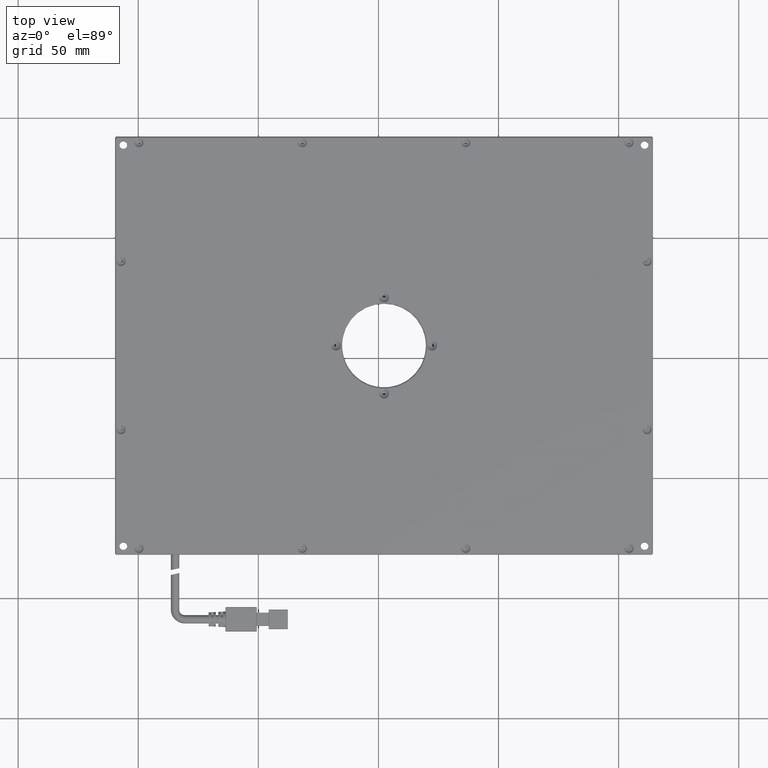
[diagram: clean part render]
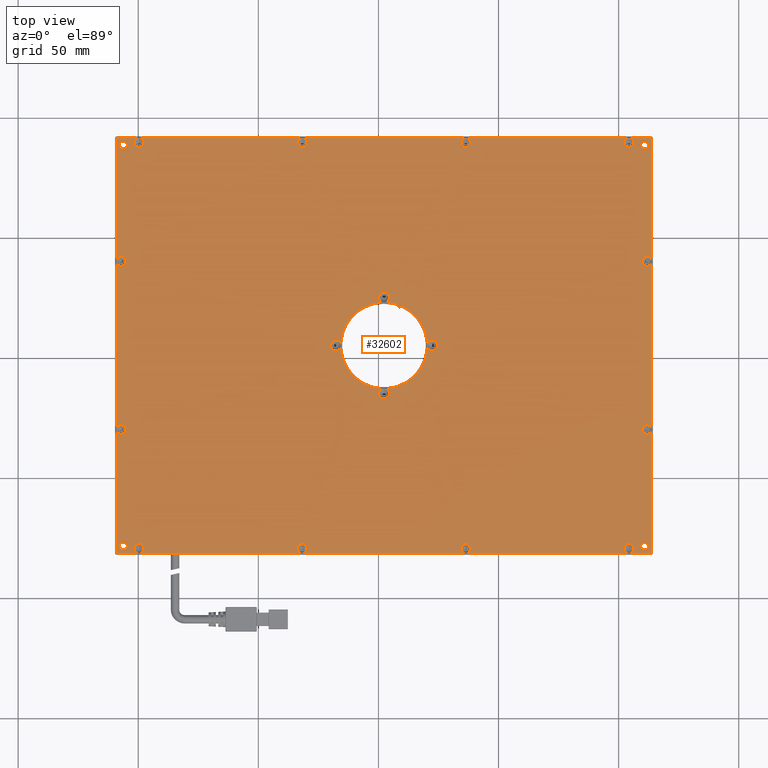
[diagram: same view with one face highlighted and labeled with its STEP entity id]
A machine part, top view. The second image highlights one B-rep face of the part: STEP entity #32602.
In plain terms, the highlighted planar face has unit normal (0, 0, -1).
Its self-contained STEP definition (entity closure, byte-faithful):
#11 = EDGE_CURVE ( 'NONE', #26374, #24419, #13463, .T. ) ;
#31 = DIRECTION ( 'NONE',  ( -1.040834085606428300E-014, -1.000000000000000000, 0.0000000000000000000 ) ) ;
#104 = AXIS2_PLACEMENT_3D ( 'NONE', #41698, #2816, #3308 ) ;
#369 = DIRECTION ( 'NONE',  ( -0.0000000000000000000, 0.0000000000000000000, -1.000000000000000000 ) ) ;
#406 = CARTESIAN_POINT ( 'NONE',  ( 3.192203652251565300, -12.78646835441682100, 5.249999999971678700 ) ) ;
#501 = EDGE_CURVE ( 'NONE', #10612, #35659, #8555, .T. ) ;
#531 = AXIS2_PLACEMENT_3D ( 'NONE', #32218, #47356, #12521 ) ;
#559 = DIRECTION ( 'NONE',  ( 1.000000000000000000, 0.0000000000000000000, 0.0000000000000000000 ) ) ;
#560 = CIRCLE ( 'NONE', #15347, 17.99999999999993200 ) ;
#632 = CIRCLE ( 'NONE', #16906, 1.999999999977297700 ) ;
#669 = DIRECTION ( 'NONE',  ( -1.000000000000000000, 0.0000000000000000000, -0.0000000000000000000 ) ) ;
#1033 = DIRECTION ( 'NONE',  ( 1.000000000000000000, 0.0000000000000000000, 0.0000000000000000000 ) ) ;
#1160 = CIRCLE ( 'NONE', #5350, 2.200000000016189000 ) ;
#1227 = ORIENTED_EDGE ( 'NONE', *, *, #40247, .F. ) ;
#1331 = DIRECTION ( 'NONE',  ( 0.0000000000000000000, -0.0000000000000000000, 1.000000000000000000 ) ) ;
#1404 = CARTESIAN_POINT ( 'NONE',  ( 2.322974683544323700, 91.69253164556960200, 5.249999999999999100 ) ) ;
#1477 = DIRECTION ( 'NONE',  ( 1.000000000000000000, 0.0000000000000000000, 0.0000000000000000000 ) ) ;
#1583 = DIRECTION ( 'NONE',  ( -0.0000000000000000000, 0.0000000000000000000, -1.000000000000000000 ) ) ;
#1650 = PLANE ( 'NONE',  #8364 ) ;
#1750 = CARTESIAN_POINT ( 'NONE',  ( 4.522974683560512700, -14.80746835443041600, 5.249999999964529700 ) ) ;
#1901 = ORIENTED_EDGE ( 'NONE', *, *, #11973, .T. ) ;
#1933 = VERTEX_POINT ( 'NONE', #3064 ) ;
#1950 = CARTESIAN_POINT ( 'NONE',  ( 36.32297468354430900, -79.30746835443038400, 5.250000000021373100 ) ) ;
#2087 = CIRCLE ( 'NONE', #47660, 2.199999999997984900 ) ;
#2132 = CARTESIAN_POINT ( 'NONE',  ( 112.4229746835443100, 88.69253164556958800, 5.249999999999999100 ) ) ;
#2181 = CARTESIAN_POINT ( 'NONE',  ( 20.30197468356493600, 6.061760614246995100, 5.250000000058496300 ) ) ;
#2191 = VERTEX_POINT ( 'NONE', #20215 ) ;
#2225 = AXIS2_PLACEMENT_3D ( 'NONE', #12942, #5660, #9091 ) ;
#2343 = DIRECTION ( 'NONE',  ( 1.000000000000000000, 0.0000000000000000000, 0.0000000000000000000 ) ) ;
#2354 = EDGE_LOOP ( 'NONE', ( #45294, #47401 ) ) ;
#2365 = DIRECTION ( 'NONE',  ( 0.0000000000000000000, -1.000000000000000000, 0.0000000000000000000 ) ) ;
#2395 = DIRECTION ( 'NONE',  ( -0.0000000000000000000, 0.0000000000000000000, -1.000000000000000000 ) ) ;
#2582 = DIRECTION ( 'NONE',  ( 0.0000000000000000000, -0.0000000000000000000, 1.000000000000000000 ) ) ;
#2816 = DIRECTION ( 'NONE',  ( 0.0000000000000000000, 0.0000000000000000000, -1.000000000000000000 ) ) ;
#2962 = CARTESIAN_POINT ( 'NONE',  ( -99.67702531645579700, 91.69253164555823300, 5.250000000010686600 ) ) ;
#3064 = CARTESIAN_POINT ( 'NONE',  ( -31.67702531645572600, 91.69253164555006200, 5.250000000010686600 ) ) ;
#3201 = CARTESIAN_POINT ( 'NONE',  ( 110.8229746835443000, 88.69253164556958800, 5.249999999999999100 ) ) ;
#3215 = CARTESIAN_POINT ( 'NONE',  ( 4.522974683560512700, 25.19253164556961300, 5.249999999964529700 ) ) ;
#3302 = EDGE_LOOP ( 'NONE', ( #22130, #49959, #7232, #43466, #26009, #3424, #33264, #1901, #19065, #22626, #37063, #10018, #10730, #29569, #38683, #19631, #13701, #19624, #43951, #24274, #30026, #12705, #9176, #16782, #37805, #44544, #41928, #19157, #22575, #48512, #27051, #35864, #1227, #29871, #38299, #28676, #25961, #9014, #11028, #39763, #5995 ) ) ;
#3308 = DIRECTION ( 'NONE',  ( 1.000000000000000000, 0.0000000000000000000, 0.0000000000000000000 ) ) ;
#3312 = CIRCLE ( 'NONE', #17406, 1.999999999960908200 ) ;
#3371 = CIRCLE ( 'NONE', #2225, 1.999999999960921900 ) ;
#3424 = ORIENTED_EDGE ( 'NONE', *, *, #33459, .T. ) ;
#3625 = CARTESIAN_POINT ( 'NONE',  ( -17.67702531645569100, 7.392531645547078000, 5.250000000021373100 ) ) ;
#3952 = VERTEX_POINT ( 'NONE', #18542 ) ;
#4017 = DIRECTION ( 'NONE',  ( 0.0000000000000000000, -1.000000000000000000, 0.0000000000000000000 ) ) ;
#4327 = DIRECTION ( 'NONE',  ( 1.000000000000000000, 0.0000000000000000000, 0.0000000000000000000 ) ) ;
#4397 = DIRECTION ( 'NONE',  ( -0.0000000000000000000, -5.421010862533481000E-017, -1.000000000000000000 ) ) ;
#4546 = DIRECTION ( 'NONE',  ( -0.0000000000000000000, -5.421010862577830400E-017, -1.000000000000000000 ) ) ;
#4572 = CARTESIAN_POINT ( 'NONE',  ( 3.192203652251652800, 23.17153164555605100, 5.249999999971687500 ) ) ;
#4610 = CIRCLE ( 'NONE', #36988, 1.600000000000004100 ) ;
#4726 = AXIS2_PLACEMENT_3D ( 'NONE', #32794, #20661, #20491 ) ;
#4878 = ORIENTED_EDGE ( 'NONE', *, *, #44305, .F. ) ;
#4969 = DIRECTION ( 'NONE',  ( 0.0000000000000000000, -0.0000000000000000000, 1.000000000000000000 ) ) ;
#4981 = VERTEX_POINT ( 'NONE', #14379 ) ;
#5234 = EDGE_CURVE ( 'NONE', #47872, #20428, #47271, .T. ) ;
#5350 = AXIS2_PLACEMENT_3D ( 'NONE', #16248, #4969, #16421 ) ;
#5660 = DIRECTION ( 'NONE',  ( -0.0000000000000000000, -5.421010862533444000E-017, -1.000000000000000000 ) ) ;
#5669 = EDGE_CURVE ( 'NONE', #11614, #40309, #6794, .T. ) ;
#5686 = EDGE_CURVE ( 'NONE', #18883, #9962, #14623, .T. ) ;
#5706 = VECTOR ( 'NONE', #10868, 1000.000000000000000 ) ;
#5708 = DIRECTION ( 'NONE',  ( 0.0000000000000000000, -0.0000000000000000000, 1.000000000000000000 ) ) ;
#5953 = VECTOR ( 'NONE', #21109, 1000.000000000000000 ) ;
#5995 = ORIENTED_EDGE ( 'NONE', *, *, #14123, .F. ) ;
#6019 = VERTEX_POINT ( 'NONE', #40062 ) ;
#6026 = AXIS2_PLACEMENT_3D ( 'NONE', #38517, #27367, #4327 ) ;
#6245 = EDGE_CURVE ( 'NONE', #29864, #49752, #632, .T. ) ;
#6426 = CARTESIAN_POINT ( 'NONE',  ( -105.1770253165029500, -29.80746835443040500, 5.249999999990023100 ) ) ;
#6471 = DIRECTION ( 'NONE',  ( 1.000000000000000000, -0.0000000000000000000, 0.0000000000000000000 ) ) ;
#6473 = ORIENTED_EDGE ( 'NONE', *, *, #9556, .F. ) ;
#6555 = DIRECTION ( 'NONE',  ( -0.0000000000000000000, -5.421010862533444000E-017, -1.000000000000000000 ) ) ;
#6715 = DIRECTION ( 'NONE',  ( 1.000000000000000000, 0.0000000000000000000, 0.0000000000000000000 ) ) ;
#6794 = LINE ( 'NONE', #44800, #43607 ) ;
#6994 = ORIENTED_EDGE ( 'NONE', *, *, #27884, .F. ) ;
#7133 = CARTESIAN_POINT ( 'NONE',  ( 2.322974683544323700, 91.69253164556960200, 5.249999999999999100 ) ) ;
#7151 = VERTEX_POINT ( 'NONE', #47655 ) ;
#7232 = ORIENTED_EDGE ( 'NONE', *, *, #41902, .F. ) ;
#7244 = VERTEX_POINT ( 'NONE', #20720 ) ;
#7248 = LINE ( 'NONE', #17377, #47012 ) ;
#7378 = DIRECTION ( 'NONE',  ( -0.0000000000000000000, -1.000000000000000000, -0.0000000000000000000 ) ) ;
#7567 = LINE ( 'NONE', #7133, #5706 ) ;
#7771 = EDGE_CURVE ( 'NONE', #19962, #47657, #25020, .T. ) ;
#7773 = CARTESIAN_POINT ( 'NONE',  ( 113.8229746835443400, 5.192531645569598500, 5.249999999999999100 ) ) ;
#7846 = CARTESIAN_POINT ( 'NONE',  ( 1.453745714837063800, -12.78646835441682400, 5.249999999971686600 ) ) ;
#7848 = DIRECTION ( 'NONE',  ( 0.0000000000000000000, -0.0000000000000000000, 1.000000000000000000 ) ) ;
#7903 = EDGE_LOOP ( 'NONE', ( #38552, #39540 ) ) ;
#7943 = DIRECTION ( 'NONE',  ( 1.000000000000000000, 0.0000000000000000000, 0.0000000000000000000 ) ) ;
#8012 = CARTESIAN_POINT ( 'NONE',  ( 36.32297468354431700, 91.69253164554187700, 5.250000000010686600 ) ) ;
#8125 = CARTESIAN_POINT ( 'NONE',  ( 104.3229746835443200, 89.69253164556961600, 5.250000000021373100 ) ) ;
#8364 = AXIS2_PLACEMENT_3D ( 'NONE', #25194, #14252, #10414 ) ;
#8438 = EDGE_CURVE ( 'NONE', #40309, #47657, #49951, .T. ) ;
#8504 = CIRCLE ( 'NONE', #38078, 2.199999999997984900 ) ;
#8555 = CIRCLE ( 'NONE', #34365, 1.999999999960908200 ) ;
#8670 = VECTOR ( 'NONE', #14971, 1000.000000000000000 ) ;
#8710 = CIRCLE ( 'NONE', #16700, 1.999999999928156600 ) ;
#8778 = CARTESIAN_POINT ( 'NONE',  ( 109.8229746835661300, 40.19253164556960200, 5.250000000021373100 ) ) ;
#8856 = CARTESIAN_POINT ( 'NONE',  ( 104.3229746835443300, -79.30746835443037000, 5.250000000021373100 ) ) ;
#8865 = CARTESIAN_POINT ( 'NONE',  ( 0.1229746835281347900, -14.80746835443041600, 5.249999999964529700 ) ) ;
#8881 = AXIS2_PLACEMENT_3D ( 'NONE', #44960, #25756, #2365 ) ;
#8918 = CIRCLE ( 'NONE', #6026, 1.999999999952706300 ) ;
#8975 = EDGE_CURVE ( 'NONE', #28691, #43007, #36595, .T. ) ;
#9014 = ORIENTED_EDGE ( 'NONE', *, *, #30097, .F. ) ;
#9016 = DIRECTION ( 'NONE',  ( 0.0000000000000000000, -0.0000000000000000000, 1.000000000000000000 ) ) ;
#9059 = ORIENTED_EDGE ( 'NONE', *, *, #20064, .F. ) ;
#9061 = CARTESIAN_POINT ( 'NONE',  ( -106.1770253164556600, 88.69253164556958800, 5.249999999999999100 ) ) ;
#9073 = VERTEX_POINT ( 'NONE', #33098 ) ;
#9091 = DIRECTION ( 'NONE',  ( 0.0000000000000000000, -1.000000000000000000, 0.0000000000000000000 ) ) ;
#9147 = ORIENTED_EDGE ( 'NONE', *, *, #44421, .F. ) ;
#9176 = ORIENTED_EDGE ( 'NONE', *, *, #18703, .F. ) ;
#9256 = EDGE_CURVE ( 'NONE', #47657, #31104, #38342, .T. ) ;
#9329 = EDGE_CURVE ( 'NONE', #29232, #16377, #16640, .T. ) ;
#9392 = DIRECTION ( 'NONE',  ( 0.0000000000000000000, -1.000000000000000000, 0.0000000000000000000 ) ) ;
#9417 = CARTESIAN_POINT ( 'NONE',  ( 2.322974683544323700, -81.30746835443041200, 5.249999999999999100 ) ) ;
#9475 = EDGE_CURVE ( 'NONE', #9962, #18883, #26802, .T. ) ;
#9556 = EDGE_CURVE ( 'NONE', #2191, #12441, #9945, .T. ) ;
#9565 = CIRCLE ( 'NONE', #9922, 1.999999999944546100 ) ;
#9673 = ORIENTED_EDGE ( 'NONE', *, *, #31316, .F. ) ;
#9737 = CARTESIAN_POINT ( 'NONE',  ( 22.32297468354433800, 5.192531645569809000, 5.250000000078216500 ) ) ;
#9796 = DIRECTION ( 'NONE',  ( 0.0000000000000000000, 0.0000000000000000000, -1.000000000000000000 ) ) ;
#9922 = AXIS2_PLACEMENT_3D ( 'NONE', #15813, #4546, #42772 ) ;
#9945 = CIRCLE ( 'NONE', #46742, 17.99999999999993200 ) ;
#9960 = DIRECTION ( 'NONE',  ( 1.000000000000000000, 0.0000000000000000000, 0.0000000000000000000 ) ) ;
#9962 = VERTEX_POINT ( 'NONE', #10624 ) ;
#10018 = ORIENTED_EDGE ( 'NONE', *, *, #32528, .T. ) ;
#10344 = AXIS2_PLACEMENT_3D ( 'NONE', #18534, #40932, #26258 ) ;
#10414 = DIRECTION ( 'NONE',  ( -1.000000000000000000, 0.0000000000000000000, -0.0000000000000000000 ) ) ;
#10539 = AXIS2_PLACEMENT_3D ( 'NONE', #39614, #9016, #12690 ) ;
#10566 = VERTEX_POINT ( 'NONE', #41847 ) ;
#10612 = VERTEX_POINT ( 'NONE', #38139 ) ;
#10624 = CARTESIAN_POINT ( 'NONE',  ( 112.4229746835443000, -78.30746835443039800, 5.249999999999999100 ) ) ;
#10730 = ORIENTED_EDGE ( 'NONE', *, *, #29249, .F. ) ;
#10868 = DIRECTION ( 'NONE',  ( 1.000000000000000000, -0.0000000000000000000, 0.0000000000000000000 ) ) ;
#11028 = ORIENTED_EDGE ( 'NONE', *, *, #12026, .F. ) ;
#11041 = CARTESIAN_POINT ( 'NONE',  ( -31.67702531645569400, -77.30746835446947800, 5.250000000021373100 ) ) ;
#11126 = DIRECTION ( 'NONE',  ( 0.0000000000000000000, 0.0000000000000000000, -1.000000000000000000 ) ) ;
#11306 = EDGE_CURVE ( 'NONE', #7151, #23270, #48289, .T. ) ;
#11614 = VERTEX_POINT ( 'NONE', #21002 ) ;
#11645 = CARTESIAN_POINT ( 'NONE',  ( 104.3229746835444200, -81.30746835439445900, 5.250000000010686600 ) ) ;
#11722 = DIRECTION ( 'NONE',  ( 1.000000000000000000, 0.0000000000000000000, 0.0000000000000000000 ) ) ;
#11760 = VERTEX_POINT ( 'NONE', #2181 ) ;
#11910 = EDGE_LOOP ( 'NONE', ( #20260, #23868 ) ) ;
#11973 = EDGE_CURVE ( 'NONE', #42393, #34374, #25240, .T. ) ;
#12026 = EDGE_CURVE ( 'NONE', #24419, #40536, #16207, .T. ) ;
#12056 = AXIS2_PLACEMENT_3D ( 'NONE', #24456, #2395, #47496 ) ;
#12210 = AXIS2_PLACEMENT_3D ( 'NONE', #29863, #33611, #14903 ) ;
#12360 = CIRCLE ( 'NONE', #38154, 1.999999999928142600 ) ;
#12441 = VERTEX_POINT ( 'NONE', #7846 ) ;
#12521 = DIRECTION ( 'NONE',  ( 1.000000000000000000, 0.0000000000000000000, 0.0000000000000000000 ) ) ;
#12685 = CARTESIAN_POINT ( 'NONE',  ( 110.8229746835443000, 88.69253164556958800, 5.249999999999999100 ) ) ;
#12690 = DIRECTION ( 'NONE',  ( 1.000000000000000000, 0.0000000000000000000, 0.0000000000000000000 ) ) ;
#12705 = ORIENTED_EDGE ( 'NONE', *, *, #48417, .F. ) ;
#12768 = DIRECTION ( 'NONE',  ( 0.0000000000000000000, -0.0000000000000000000, 1.000000000000000000 ) ) ;
#12909 = DIRECTION ( 'NONE',  ( 0.0000000000000000000, 0.0000000000000000000, -1.000000000000000000 ) ) ;
#12934 = CIRCLE ( 'NONE', #24645, 1.999999999928142600 ) ;
#12942 = CARTESIAN_POINT ( 'NONE',  ( -31.67702531645570500, 89.69253164556960200, 5.250000000021373100 ) ) ;
#12956 = DIRECTION ( 'NONE',  ( 0.0000000000000000000, -0.0000000000000000000, 1.000000000000000000 ) ) ;
#13134 = LINE ( 'NONE', #33673, #46812 ) ;
#13259 = CIRCLE ( 'NONE', #37493, 1.999999999952706300 ) ;
#13463 = LINE ( 'NONE', #22862, #45383 ) ;
#13495 = AXIS2_PLACEMENT_3D ( 'NONE', #26981, #46513, #39805 ) ;
#13701 = ORIENTED_EDGE ( 'NONE', *, *, #35541, .F. ) ;
#13916 = CARTESIAN_POINT ( 'NONE',  ( -107.7770253164556500, -78.30746835443039800, 5.249999999999999100 ) ) ;
#14094 = EDGE_CURVE ( 'NONE', #28691, #10612, #16128, .T. ) ;
#14123 = EDGE_CURVE ( 'NONE', #40657, #26374, #39606, .T. ) ;
#14200 = DIRECTION ( 'NONE',  ( 1.000000000000000000, 0.0000000000000000000, 0.0000000000000000000 ) ) ;
#14220 = CARTESIAN_POINT ( 'NONE',  ( 2.322974683544323700, -81.30746835443041200, 5.249999999999999100 ) ) ;
#14252 = DIRECTION ( 'NONE',  ( 0.0000000000000000000, 0.0000000000000000000, -1.000000000000000000 ) ) ;
#14279 = DIRECTION ( 'NONE',  ( 0.0000000000000000000, -0.0000000000000000000, 1.000000000000000000 ) ) ;
#14373 = DIRECTION ( 'NONE',  ( -1.000000000000000000, 0.0000000000000000000, -0.0000000000000000000 ) ) ;
#14379 = CARTESIAN_POINT ( 'NONE',  ( 20.30197468356415800, 4.323302676894409800, 5.250000000054551000 ) ) ;
#14460 = CIRCLE ( 'NONE', #4726, 1.999999999952706300 ) ;
#14623 = CIRCLE ( 'NONE', #10344, 1.600000000000004100 ) ;
#14755 = FACE_OUTER_BOUND ( 'NONE', #3302, .T. ) ;
#14802 = CARTESIAN_POINT ( 'NONE',  ( 2.322974683544323700, -81.30746835443041200, 5.249999999999999100 ) ) ;
#14903 = DIRECTION ( 'NONE',  ( 1.000000000000000000, 0.0000000000000000000, 0.0000000000000000000 ) ) ;
#14914 = AXIS2_PLACEMENT_3D ( 'NONE', #8125, #19227, #38921 ) ;
#14971 = DIRECTION ( 'NONE',  ( -1.000000000000000000, 0.0000000000000000000, -0.0000000000000000000 ) ) ;
#15012 = VERTEX_POINT ( 'NONE', #44520 ) ;
#15056 = CARTESIAN_POINT ( 'NONE',  ( 109.2229746835443100, 88.69253164556958800, 5.249999999999999100 ) ) ;
#15153 = LINE ( 'NONE', #7773, #42912 ) ;
#15334 = DIRECTION ( 'NONE',  ( 0.0000000000000000000, 0.0000000000000000000, -1.000000000000000000 ) ) ;
#15347 = AXIS2_PLACEMENT_3D ( 'NONE', #24216, #12768, #1477 ) ;
#15462 = LINE ( 'NONE', #14220, #42580 ) ;
#15749 = CIRCLE ( 'NONE', #8881, 2.199999999977549700 ) ;
#15813 = CARTESIAN_POINT ( 'NONE',  ( 36.32297468354429500, 89.69253164556960200, 5.250000000021373100 ) ) ;
#15832 = CARTESIAN_POINT ( 'NONE',  ( -31.67702531645569400, -79.30746835443038400, 5.250000000021373100 ) ) ;
#15840 = CARTESIAN_POINT ( 'NONE',  ( 104.3229746835443200, 89.69253164556961600, 5.250000000021373100 ) ) ;
#16105 = CIRCLE ( 'NONE', #43993, 1.999999999977283900 ) ;
#16110 = VERTEX_POINT ( 'NONE', #2132 ) ;
#16128 = LINE ( 'NONE', #47102, #45595 ) ;
#16207 = LINE ( 'NONE', #9417, #5953 ) ;
#16248 = CARTESIAN_POINT ( 'NONE',  ( 2.322974683544323700, 25.19253164556961300, 5.249999999964529700 ) ) ;
#16372 = CARTESIAN_POINT ( 'NONE',  ( 2.322974683544365400, 5.192531645569612700, 5.249999999999999100 ) ) ;
#16377 = VERTEX_POINT ( 'NONE', #3625 ) ;
#16390 = CARTESIAN_POINT ( 'NONE',  ( 109.8229746835661000, -29.80746835443040500, 5.250000000021373100 ) ) ;
#16421 = DIRECTION ( 'NONE',  ( 1.000000000000000000, 0.0000000000000000000, 0.0000000000000000000 ) ) ;
#16640 = CIRCLE ( 'NONE', #13495, 2.199999999977549700 ) ;
#16674 = VERTEX_POINT ( 'NONE', #1750 ) ;
#16700 = AXIS2_PLACEMENT_3D ( 'NONE', #20303, #24028, #27526 ) ;
#16782 = ORIENTED_EDGE ( 'NONE', *, *, #5669, .F. ) ;
#16906 = AXIS2_PLACEMENT_3D ( 'NONE', #41880, #22152, #48929 ) ;
#17143 = CARTESIAN_POINT ( 'NONE',  ( 111.8229746835443200, 40.19253164556960200, 5.250000000021373100 ) ) ;
#17154 = CARTESIAN_POINT ( 'NONE',  ( -107.1770253164556600, -29.80746835443040500, 5.249999999990023100 ) ) ;
#17213 = ORIENTED_EDGE ( 'NONE', *, *, #9329, .F. ) ;
#17377 = CARTESIAN_POINT ( 'NONE',  ( 2.322974683544323700, 91.69253164556960200, 5.249999999999999100 ) ) ;
#17406 = AXIS2_PLACEMENT_3D ( 'NONE', #48130, #32856, #44630 ) ;
#17531 = DIRECTION ( 'NONE',  ( 0.0000000000000000000, 5.421010862577868000E-017, 1.000000000000000000 ) ) ;
#17643 = DIRECTION ( 'NONE',  ( 1.000000000000000000, 0.0000000000000000000, 0.0000000000000000000 ) ) ;
#17687 = EDGE_CURVE ( 'NONE', #47657, #19962, #14460, .T. ) ;
#17715 = DIRECTION ( 'NONE',  ( 1.000000000000000000, 0.0000000000000000000, 0.0000000000000000000 ) ) ;
#17852 = CIRCLE ( 'NONE', #46161, 2.200000000016189000 ) ;
#17978 = DIRECTION ( 'NONE',  ( 0.0000000000000000000, 1.000000000000000000, 0.0000000000000000000 ) ) ;
#17988 = AXIS2_PLACEMENT_3D ( 'NONE', #1950, #44212, #9392 ) ;
#18104 = CIRCLE ( 'NONE', #49760, 2.199999999977549700 ) ;
#18352 = CARTESIAN_POINT ( 'NONE',  ( -107.7770253164556600, 88.69253164556958800, 5.249999999999999100 ) ) ;
#18534 = CARTESIAN_POINT ( 'NONE',  ( 110.8229746835442900, -78.30746835443039800, 5.249999999999999100 ) ) ;
#18542 = CARTESIAN_POINT ( 'NONE',  ( 106.3229746834724800, 89.69253164556961600, 5.250000000021373100 ) ) ;
#18703 = EDGE_CURVE ( 'NONE', #40309, #25719, #8918, .T. ) ;
#18883 = VERTEX_POINT ( 'NONE', #19969 ) ;
#18967 = FACE_BOUND ( 'NONE', #2354, .T. ) ;
#18984 = CARTESIAN_POINT ( 'NONE',  ( 36.32297468354429500, 89.69253164556960200, 5.250000000021373100 ) ) ;
#19027 = EDGE_CURVE ( 'NONE', #40536, #28691, #15462, .T. ) ;
#19065 = ORIENTED_EDGE ( 'NONE', *, *, #36381, .T. ) ;
#19157 = ORIENTED_EDGE ( 'NONE', *, *, #33577, .T. ) ;
#19166 = CARTESIAN_POINT ( 'NONE',  ( -17.67702531645569100, 2.992531645591979000, 5.250000000021373100 ) ) ;
#19227 = DIRECTION ( 'NONE',  ( -0.0000000000000000000, 0.0000000000000000000, -1.000000000000000000 ) ) ;
#19267 = EDGE_CURVE ( 'NONE', #42393, #7244, #7567, .T. ) ;
#19396 = LINE ( 'NONE', #29498, #47686 ) ;
#19624 = ORIENTED_EDGE ( 'NONE', *, *, #9256, .F. ) ;
#19631 = ORIENTED_EDGE ( 'NONE', *, *, #34378, .T. ) ;
#19643 = CIRCLE ( 'NONE', #33778, 17.99999999999993200 ) ;
#19728 = AXIS2_PLACEMENT_3D ( 'NONE', #12685, #47817, #43527 ) ;
#19924 = CARTESIAN_POINT ( 'NONE',  ( 111.8229746835443000, -29.80746835443040500, 5.250000000021373100 ) ) ;
#19962 = VERTEX_POINT ( 'NONE', #46131 ) ;
#19969 = CARTESIAN_POINT ( 'NONE',  ( 109.2229746835442900, -78.30746835443039800, 5.249999999999999100 ) ) ;
#20064 = EDGE_CURVE ( 'NONE', #44609, #22352, #17852, .T. ) ;
#20102 = DIRECTION ( 'NONE',  ( 1.000000000000000000, 0.0000000000000000000, 0.0000000000000000000 ) ) ;
#20215 = CARTESIAN_POINT ( 'NONE',  ( -15.65602531646744600, 4.323302676915388600, 5.250000000020019500 ) ) ;
#20260 = ORIENTED_EDGE ( 'NONE', *, *, #46502, .F. ) ;
#20303 = CARTESIAN_POINT ( 'NONE',  ( 104.3229746835443200, 89.69253164556961600, 5.250000000021373100 ) ) ;
#20428 = VERTEX_POINT ( 'NONE', #23351 ) ;
#20479 = ORIENTED_EDGE ( 'NONE', *, *, #25223, .T. ) ;
#20491 = DIRECTION ( 'NONE',  ( 1.000000000000000000, 0.0000000000000000000, 0.0000000000000000000 ) ) ;
#20623 = DIRECTION ( 'NONE',  ( 1.000000000000000000, 0.0000000000000000000, 0.0000000000000000000 ) ) ;
#20661 = DIRECTION ( 'NONE',  ( 0.0000000000000000000, -0.0000000000000000000, 1.000000000000000000 ) ) ;
#20720 = CARTESIAN_POINT ( 'NONE',  ( 104.3229746835444000, 91.69253164553369100, 5.250000000010686600 ) ) ;
#20752 = EDGE_CURVE ( 'NONE', #10612, #43257, #26103, .T. ) ;
#20754 = ORIENTED_EDGE ( 'NONE', *, *, #33171, .F. ) ;
#20788 = CIRCLE ( 'NONE', #104, 1.600000000000004100 ) ;
#20898 = DIRECTION ( 'NONE',  ( 0.0000000000000000000, -1.000000000000000000, 0.0000000000000000000 ) ) ;
#21002 = CARTESIAN_POINT ( 'NONE',  ( -109.1770253164556700, -81.30746835443042600, 5.249999999999999100 ) ) ;
#21109 = DIRECTION ( 'NONE',  ( -1.000000000000000000, 0.0000000000000000000, -0.0000000000000000000 ) ) ;
#21413 = CIRCLE ( 'NONE', #38662, 1.999999999977283900 ) ;
#21443 = EDGE_CURVE ( 'NONE', #33964, #2191, #18104, .T. ) ;
#21476 = CARTESIAN_POINT ( 'NONE',  ( 111.8229746835443200, 40.19253164556960200, 5.250000000021373100 ) ) ;
#21839 = CARTESIAN_POINT ( 'NONE',  ( -15.65602531646746300, 6.061760614223698200, 5.250000000020028400 ) ) ;
#21979 = FACE_BOUND ( 'NONE', #42437, .T. ) ;
#22076 = VECTOR ( 'NONE', #46851, 1000.000000000000000 ) ;
#22130 = ORIENTED_EDGE ( 'NONE', *, *, #34897, .F. ) ;
#22152 = DIRECTION ( 'NONE',  ( -0.0000000000000000000, 0.0000000000000000000, -1.000000000000000000 ) ) ;
#22241 = DIRECTION ( 'NONE',  ( 0.0000000000000000000, -0.0000000000000000000, 1.000000000000000000 ) ) ;
#22256 = DIRECTION ( 'NONE',  ( 1.000000000000000000, 0.0000000000000000000, 0.0000000000000000000 ) ) ;
#22352 = VERTEX_POINT ( 'NONE', #3215 ) ;
#22353 = CARTESIAN_POINT ( 'NONE',  ( -109.1770253164557100, 91.69253164556961600, 5.249999999999999100 ) ) ;
#22575 = ORIENTED_EDGE ( 'NONE', *, *, #20752, .F. ) ;
#22626 = ORIENTED_EDGE ( 'NONE', *, *, #49585, .F. ) ;
#22862 = CARTESIAN_POINT ( 'NONE',  ( 113.8229746835443400, 5.192531645569598500, 5.249999999999999100 ) ) ;
#23115 = DIRECTION ( 'NONE',  ( 1.000000000000000000, 0.0000000000000000000, 0.0000000000000000000 ) ) ;
#23270 = VERTEX_POINT ( 'NONE', #13916 ) ;
#23351 = CARTESIAN_POINT ( 'NONE',  ( 113.8229746835225000, -29.80746835443040500, 5.250000000021373100 ) ) ;
#23868 = ORIENTED_EDGE ( 'NONE', *, *, #5234, .F. ) ;
#24000 = CIRCLE ( 'NONE', #10539, 2.200000000016189000 ) ;
#24028 = DIRECTION ( 'NONE',  ( -0.0000000000000000000, 0.0000000000000000000, -1.000000000000000000 ) ) ;
#24216 = CARTESIAN_POINT ( 'NONE',  ( 2.322974683544365400, 5.192531645569612700, 5.249999999999999100 ) ) ;
#24237 = DIRECTION ( 'NONE',  ( 1.000000000000000000, 0.0000000000000000000, 0.0000000000000000000 ) ) ;
#24274 = ORIENTED_EDGE ( 'NONE', *, *, #17687, .F. ) ;
#24308 = VERTEX_POINT ( 'NONE', #48822 ) ;
#24398 = DIRECTION ( 'NONE',  ( 1.000000000000000000, 0.0000000000000000000, 0.0000000000000000000 ) ) ;
#24419 = VERTEX_POINT ( 'NONE', #45462 ) ;
#24456 = CARTESIAN_POINT ( 'NONE',  ( -99.67702531645571200, 89.69253164556958800, 5.250000000021373100 ) ) ;
#24459 = AXIS2_PLACEMENT_3D ( 'NONE', #29695, #7848, #11722 ) ;
#24482 = AXIS2_PLACEMENT_3D ( 'NONE', #17143, #36170, #36006 ) ;
#24578 = AXIS2_PLACEMENT_3D ( 'NONE', #3201, #11126, #41924 ) ;
#24635 = CARTESIAN_POINT ( 'NONE',  ( -99.67702531645571200, 89.69253164556958800, 5.250000000021373100 ) ) ;
#24645 = AXIS2_PLACEMENT_3D ( 'NONE', #8856, #35444, #20102 ) ;
#24767 = ORIENTED_EDGE ( 'NONE', *, *, #5686, .T. ) ;
#25020 = CIRCLE ( 'NONE', #531, 1.999999999952706300 ) ;
#25028 = DIRECTION ( 'NONE',  ( 1.000000000000000000, 0.0000000000000000000, 0.0000000000000000000 ) ) ;
#25144 = CARTESIAN_POINT ( 'NONE',  ( 2.322974683544323700, 25.19253164556961300, 5.249999999964529700 ) ) ;
#25194 = CARTESIAN_POINT ( 'NONE',  ( 2.322974683544323700, 5.192531645569598500, 5.249999999999999100 ) ) ;
#25223 = EDGE_CURVE ( 'NONE', #39392, #35845, #38825, .T. ) ;
#25240 = CIRCLE ( 'NONE', #36579, 1.999999999944546100 ) ;
#25306 = DIRECTION ( 'NONE',  ( 1.000000000000000000, 0.0000000000000000000, 0.0000000000000000000 ) ) ;
#25472 = CARTESIAN_POINT ( 'NONE',  ( 2.322974683544365400, 5.192531645569612700, 5.250000000000000900 ) ) ;
#25698 = DIRECTION ( 'NONE',  ( 0.0000000000000000000, -0.0000000000000000000, 1.000000000000000000 ) ) ;
#25719 = VERTEX_POINT ( 'NONE', #6426 ) ;
#25739 = DIRECTION ( 'NONE',  ( -0.0000000000000000000, 0.0000000000000000000, -1.000000000000000000 ) ) ;
#25756 = DIRECTION ( 'NONE',  ( 0.0000000000000000000, 4.928191693166220500E-017, 1.000000000000000000 ) ) ;
#25961 = ORIENTED_EDGE ( 'NONE', *, *, #44056, .F. ) ;
#26009 = ORIENTED_EDGE ( 'NONE', *, *, #44548, .T. ) ;
#26015 = EDGE_CURVE ( 'NONE', #49155, #26374, #15153, .T. ) ;
#26058 = CARTESIAN_POINT ( 'NONE',  ( -31.67702531645570500, 89.69253164556960200, 5.250000000021373100 ) ) ;
#26103 = LINE ( 'NONE', #14802, #8670 ) ;
#26258 = DIRECTION ( 'NONE',  ( 1.000000000000000000, 0.0000000000000000000, 0.0000000000000000000 ) ) ;
#26374 = VERTEX_POINT ( 'NONE', #36055 ) ;
#26535 = EDGE_CURVE ( 'NONE', #16377, #33964, #15749, .T. ) ;
#26630 = DIRECTION ( 'NONE',  ( 0.0000000000000000000, -0.0000000000000000000, 1.000000000000000000 ) ) ;
#26802 = CIRCLE ( 'NONE', #28938, 1.600000000000004100 ) ;
#26849 = AXIS2_PLACEMENT_3D ( 'NONE', #24635, #1583, #28483 ) ;
#26981 = CARTESIAN_POINT ( 'NONE',  ( -17.67702531645569100, 5.192531645569528300, 5.250000000021373100 ) ) ;
#27051 = ORIENTED_EDGE ( 'NONE', *, *, #37763, .T. ) ;
#27150 = DIRECTION ( 'NONE',  ( 0.0000000000000000000, 1.000000000000000000, 0.0000000000000000000 ) ) ;
#27281 = DIRECTION ( 'NONE',  ( 1.000000000000000000, 0.0000000000000000000, 0.0000000000000000000 ) ) ;
#27367 = DIRECTION ( 'NONE',  ( 0.0000000000000000000, -0.0000000000000000000, 1.000000000000000000 ) ) ;
#27526 = DIRECTION ( 'NONE',  ( 1.000000000000000000, 0.0000000000000000000, 0.0000000000000000000 ) ) ;
#27660 = DIRECTION ( 'NONE',  ( 1.000000000000000000, 0.0000000000000000000, 0.0000000000000000000 ) ) ;
#27785 = AXIS2_PLACEMENT_3D ( 'NONE', #30491, #22241, #41974 ) ;
#27884 = EDGE_CURVE ( 'NONE', #40354, #29232, #19643, .T. ) ;
#28066 = CARTESIAN_POINT ( 'NONE',  ( 2.322974683544323700, 25.19253164556961300, 5.249999999964529700 ) ) ;
#28268 = DIRECTION ( 'NONE',  ( -0.0000000000000000000, 0.0000000000000000000, -1.000000000000000000 ) ) ;
#28483 = DIRECTION ( 'NONE',  ( 1.000000000000000000, 0.0000000000000000000, 0.0000000000000000000 ) ) ;
#28540 = CARTESIAN_POINT ( 'NONE',  ( 24.52297468354232300, 5.192531645569809000, 5.250000000078216500 ) ) ;
#28676 = ORIENTED_EDGE ( 'NONE', *, *, #41490, .F. ) ;
#28691 = VERTEX_POINT ( 'NONE', #41639 ) ;
#28757 = CARTESIAN_POINT ( 'NONE',  ( 2.322974683544323700, -14.80746835443041600, 5.249999999964529700 ) ) ;
#28821 = AXIS2_PLACEMENT_3D ( 'NONE', #21476, #14279, #17643 ) ;
#28938 = AXIS2_PLACEMENT_3D ( 'NONE', #32400, #48321, #25306 ) ;
#29232 = VERTEX_POINT ( 'NONE', #21839 ) ;
#29237 = EDGE_CURVE ( 'NONE', #43257, #47868, #16105, .T. ) ;
#29249 = EDGE_CURVE ( 'NONE', #29864, #1933, #13134, .T. ) ;
#29498 = CARTESIAN_POINT ( 'NONE',  ( 2.322974683544323700, 91.69253164556960200, 5.249999999999999100 ) ) ;
#29515 = CARTESIAN_POINT ( 'NONE',  ( 106.3229746834724800, -79.30746835443037000, 5.250000000021373100 ) ) ;
#29569 = ORIENTED_EDGE ( 'NONE', *, *, #6245, .T. ) ;
#29695 = CARTESIAN_POINT ( 'NONE',  ( 111.8229746835443000, -29.80746835443040500, 5.250000000021373100 ) ) ;
#29784 = CARTESIAN_POINT ( 'NONE',  ( 1.453745714837029200, 23.17153164555604100, 5.249999999971680400 ) ) ;
#29863 = CARTESIAN_POINT ( 'NONE',  ( 104.3229746835443300, -79.30746835443037000, 5.250000000021373100 ) ) ;
#29864 = VERTEX_POINT ( 'NONE', #2962 ) ;
#29865 = VERTEX_POINT ( 'NONE', #29515 ) ;
#29871 = ORIENTED_EDGE ( 'NONE', *, *, #8975, .F. ) ;
#29877 = AXIS2_PLACEMENT_3D ( 'NONE', #26058, #6555, #33510 ) ;
#30026 = ORIENTED_EDGE ( 'NONE', *, *, #8438, .F. ) ;
#30097 = EDGE_CURVE ( 'NONE', #40536, #29865, #12934, .T. ) ;
#30341 = CIRCLE ( 'NONE', #48138, 2.200000000016189000 ) ;
#30354 = CARTESIAN_POINT ( 'NONE',  ( -97.67702531647840700, -79.30746835443039800, 5.250000000021373100 ) ) ;
#30378 = DIRECTION ( 'NONE',  ( 0.0000000000000000000, -0.0000000000000000000, 1.000000000000000000 ) ) ;
#30437 = CARTESIAN_POINT ( 'NONE',  ( 2.322974683544323700, -81.30746835443041200, 5.249999999999999100 ) ) ;
#30491 = CARTESIAN_POINT ( 'NONE',  ( 2.322974683544323700, -14.80746835443041600, 5.249999999964529700 ) ) ;
#30534 = CIRCLE ( 'NONE', #31405, 1.999999999944532400 ) ;
#31104 = VERTEX_POINT ( 'NONE', #22353 ) ;
#31110 = LINE ( 'NONE', #1404, #22076 ) ;
#31177 = DIRECTION ( 'NONE',  ( 0.0000000000000000000, -0.0000000000000000000, 1.000000000000000000 ) ) ;
#31316 = EDGE_CURVE ( 'NONE', #35677, #4981, #560, .T. ) ;
#31328 = CARTESIAN_POINT ( 'NONE',  ( 36.32297468354430900, -77.30746835448584900, 5.250000000021373100 ) ) ;
#31405 = AXIS2_PLACEMENT_3D ( 'NONE', #47993, #17531, #20898 ) ;
#31502 = CIRCLE ( 'NONE', #14914, 1.999999999928156600 ) ;
#31545 = CIRCLE ( 'NONE', #24459, 1.999999999978199700 ) ;
#31605 = FACE_BOUND ( 'NONE', #11910, .T. ) ;
#31679 = CARTESIAN_POINT ( 'NONE',  ( -104.5770253164556600, 88.69253164556958800, 5.249999999999999100 ) ) ;
#31988 = CIRCLE ( 'NONE', #42975, 2.200000000016189000 ) ;
#32159 = EDGE_CURVE ( 'NONE', #47868, #49219, #21413, .T. ) ;
#32218 = CARTESIAN_POINT ( 'NONE',  ( -107.1770253164556700, 40.19253164556960200, 5.249999999990008900 ) ) ;
#32289 = CIRCLE ( 'NONE', #29877, 1.999999999960921900 ) ;
#32400 = CARTESIAN_POINT ( 'NONE',  ( 110.8229746835442900, -78.30746835443039800, 5.249999999999999100 ) ) ;
#32528 = EDGE_CURVE ( 'NONE', #6019, #1933, #3371, .T. ) ;
#32602 = ADVANCED_FACE ( 'NONE', ( #14755, #49101, #31605, #18967, #38874, #42518, #21979 ), #1650, .F. ) ;
#32794 = CARTESIAN_POINT ( 'NONE',  ( -107.1770253164556700, 40.19253164556960200, 5.249999999990008900 ) ) ;
#32856 = DIRECTION ( 'NONE',  ( -0.0000000000000000000, -5.421010862533481000E-017, -1.000000000000000000 ) ) ;
#33014 = VERTEX_POINT ( 'NONE', #8865 ) ;
#33098 = CARTESIAN_POINT ( 'NONE',  ( -101.6770253164330000, 89.69253164556958800, 5.250000000021373100 ) ) ;
#33171 = EDGE_CURVE ( 'NONE', #11760, #44609, #48295, .T. ) ;
#33264 = ORIENTED_EDGE ( 'NONE', *, *, #19267, .F. ) ;
#33459 = EDGE_CURVE ( 'NONE', #15012, #7244, #38645, .T. ) ;
#33510 = DIRECTION ( 'NONE',  ( 0.0000000000000000000, -1.000000000000000000, 0.0000000000000000000 ) ) ;
#33577 = EDGE_CURVE ( 'NONE', #49219, #43257, #44655, .T. ) ;
#33611 = DIRECTION ( 'NONE',  ( 0.0000000000000000000, -0.0000000000000000000, 1.000000000000000000 ) ) ;
#33636 = EDGE_CURVE ( 'NONE', #12441, #33014, #31988, .T. ) ;
#33673 = CARTESIAN_POINT ( 'NONE',  ( 2.322974683544323700, 91.69253164556960200, 5.249999999999999100 ) ) ;
#33778 = AXIS2_PLACEMENT_3D ( 'NONE', #16372, #38765, #559 ) ;
#33964 = VERTEX_POINT ( 'NONE', #19166 ) ;
#34080 = ORIENTED_EDGE ( 'NONE', *, *, #45650, .T. ) ;
#34135 = EDGE_CURVE ( 'NONE', #49752, #9073, #34819, .T. ) ;
#34365 = AXIS2_PLACEMENT_3D ( 'NONE', #15832, #4397, #31 ) ;
#34374 = VERTEX_POINT ( 'NONE', #48492 ) ;
#34378 = EDGE_CURVE ( 'NONE', #9073, #29864, #39583, .T. ) ;
#34422 = CARTESIAN_POINT ( 'NONE',  ( -109.1770253164556700, 5.192531645569598500, 5.249999999999999100 ) ) ;
#34514 = DIRECTION ( 'NONE',  ( -1.000000000000000000, 0.0000000000000000000, -0.0000000000000000000 ) ) ;
#34819 = CIRCLE ( 'NONE', #26849, 1.999999999977297700 ) ;
#34897 = EDGE_CURVE ( 'NONE', #26374, #40657, #37661, .T. ) ;
#35170 = CIRCLE ( 'NONE', #12210, 1.999999999928142600 ) ;
#35220 = AXIS2_PLACEMENT_3D ( 'NONE', #47637, #28268, #1033 ) ;
#35246 = EDGE_LOOP ( 'NONE', ( #9673, #9147, #43178, #42924, #6473, #39882, #40346, #17213, #6994, #4878, #49696, #9059, #20754, #38895, #39283 ) ) ;
#35444 = DIRECTION ( 'NONE',  ( 0.0000000000000000000, -0.0000000000000000000, 1.000000000000000000 ) ) ;
#35541 = EDGE_CURVE ( 'NONE', #31104, #29864, #19396, .T. ) ;
#35659 = VERTEX_POINT ( 'NONE', #11041 ) ;
#35677 = VERTEX_POINT ( 'NONE', #406 ) ;
#35845 = VERTEX_POINT ( 'NONE', #31679 ) ;
#35864 = ORIENTED_EDGE ( 'NONE', *, *, #14094, .F. ) ;
#35973 = CARTESIAN_POINT ( 'NONE',  ( -17.67702531645569100, 5.192531645569528300, 5.250000000021373100 ) ) ;
#36006 = DIRECTION ( 'NONE',  ( 1.000000000000000000, 0.0000000000000000000, 0.0000000000000000000 ) ) ;
#36055 = CARTESIAN_POINT ( 'NONE',  ( 113.8229746835152300, 40.19253164556960200, 5.250000000058662400 ) ) ;
#36170 = DIRECTION ( 'NONE',  ( 0.0000000000000000000, -0.0000000000000000000, 1.000000000000000000 ) ) ;
#36204 = AXIS2_PLACEMENT_3D ( 'NONE', #38736, #15334, #7943 ) ;
#36208 = AXIS2_PLACEMENT_3D ( 'NONE', #9061, #12909, #20623 ) ;
#36381 = EDGE_CURVE ( 'NONE', #34374, #42393, #9565, .T. ) ;
#36396 = CARTESIAN_POINT ( 'NONE',  ( -99.67702531645578300, -81.30746835441904400, 5.250000000010686600 ) ) ;
#36500 = VECTOR ( 'NONE', #27150, 1000.000000000000000 ) ;
#36554 = CARTESIAN_POINT ( 'NONE',  ( -106.1770253164556600, 88.69253164556958800, 5.249999999999999100 ) ) ;
#36579 = AXIS2_PLACEMENT_3D ( 'NONE', #18984, #46095, #4017 ) ;
#36595 = CIRCLE ( 'NONE', #17988, 1.999999999944532400 ) ;
#36926 = DIRECTION ( 'NONE',  ( 0.0000000000000000000, -0.0000000000000000000, 1.000000000000000000 ) ) ;
#36988 = AXIS2_PLACEMENT_3D ( 'NONE', #36554, #9796, #9960 ) ;
#37063 = ORIENTED_EDGE ( 'NONE', *, *, #45870, .T. ) ;
#37218 = DIRECTION ( 'NONE',  ( 0.0000000000000000000, 1.000000000000000000, 0.0000000000000000000 ) ) ;
#37493 = AXIS2_PLACEMENT_3D ( 'NONE', #17154, #1331, #24237 ) ;
#37555 = LINE ( 'NONE', #30437, #43639 ) ;
#37583 = DIRECTION ( 'NONE',  ( 0.0000000000000000000, -0.0000000000000000000, 1.000000000000000000 ) ) ;
#37661 = CIRCLE ( 'NONE', #28821, 1.999999999978185900 ) ;
#37763 = EDGE_CURVE ( 'NONE', #35659, #10612, #3312, .T. ) ;
#37805 = ORIENTED_EDGE ( 'NONE', *, *, #37958, .F. ) ;
#37958 = EDGE_CURVE ( 'NONE', #43257, #11614, #37555, .T. ) ;
#38078 = AXIS2_PLACEMENT_3D ( 'NONE', #49367, #26630, #22256 ) ;
#38123 = CARTESIAN_POINT ( 'NONE',  ( -109.1770253164407800, 40.19253164556960200, 5.250000000057191600 ) ) ;
#38139 = CARTESIAN_POINT ( 'NONE',  ( -31.67702531645571200, -81.30746835441085800, 5.250000000010686600 ) ) ;
#38154 = AXIS2_PLACEMENT_3D ( 'NONE', #45724, #30378, #27660 ) ;
#38299 = ORIENTED_EDGE ( 'NONE', *, *, #19027, .F. ) ;
#38342 = LINE ( 'NONE', #34422, #36500 ) ;
#38517 = CARTESIAN_POINT ( 'NONE',  ( -107.1770253164556600, -29.80746835443040500, 5.249999999990023100 ) ) ;
#38552 = ORIENTED_EDGE ( 'NONE', *, *, #43410, .T. ) ;
#38645 = CIRCLE ( 'NONE', #40085, 1.999999999928156600 ) ;
#38662 = AXIS2_PLACEMENT_3D ( 'NONE', #44940, #25739, #2343 ) ;
#38683 = ORIENTED_EDGE ( 'NONE', *, *, #34135, .T. ) ;
#38736 = CARTESIAN_POINT ( 'NONE',  ( -106.1770253164556400, -78.30746835443039800, 5.249999999999999100 ) ) ;
#38765 = DIRECTION ( 'NONE',  ( 0.0000000000000000000, -0.0000000000000000000, 1.000000000000000000 ) ) ;
#38825 = CIRCLE ( 'NONE', #36208, 1.600000000000004100 ) ;
#38874 = FACE_BOUND ( 'NONE', #39068, .T. ) ;
#38895 = ORIENTED_EDGE ( 'NONE', *, *, #46326, .F. ) ;
#38921 = DIRECTION ( 'NONE',  ( 1.000000000000000000, 0.0000000000000000000, 0.0000000000000000000 ) ) ;
#39068 = EDGE_LOOP ( 'NONE', ( #44968, #24767 ) ) ;
#39145 = VECTOR ( 'NONE', #17978, 1000.000000000000000 ) ;
#39283 = ORIENTED_EDGE ( 'NONE', *, *, #42823, .F. ) ;
#39392 = VERTEX_POINT ( 'NONE', #18352 ) ;
#39540 = ORIENTED_EDGE ( 'NONE', *, *, #47908, .T. ) ;
#39583 = CIRCLE ( 'NONE', #12056, 1.999999999977297700 ) ;
#39606 = CIRCLE ( 'NONE', #24482, 1.999999999978185900 ) ;
#39614 = CARTESIAN_POINT ( 'NONE',  ( 2.322974683544323700, -14.80746835443041600, 5.249999999964529700 ) ) ;
#39703 = AXIS2_PLACEMENT_3D ( 'NONE', #41135, #37583, #41299 ) ;
#39763 = ORIENTED_EDGE ( 'NONE', *, *, #11, .F. ) ;
#39805 = DIRECTION ( 'NONE',  ( 0.0000000000000000000, -1.000000000000000000, 0.0000000000000000000 ) ) ;
#39882 = ORIENTED_EDGE ( 'NONE', *, *, #21443, .F. ) ;
#39905 = CARTESIAN_POINT ( 'NONE',  ( -109.1770253164556700, 5.192531645569598500, 5.249999999999999100 ) ) ;
#40062 = CARTESIAN_POINT ( 'NONE',  ( -31.67702531645570500, 87.69253164560868200, 5.250000000021373100 ) ) ;
#40085 = AXIS2_PLACEMENT_3D ( 'NONE', #15840, #369, #27281 ) ;
#40136 = EDGE_CURVE ( 'NONE', #33014, #16674, #24000, .T. ) ;
#40247 = EDGE_CURVE ( 'NONE', #43007, #28691, #30534, .T. ) ;
#40309 = VERTEX_POINT ( 'NONE', #40608 ) ;
#40346 = ORIENTED_EDGE ( 'NONE', *, *, #26535, .F. ) ;
#40354 = VERTEX_POINT ( 'NONE', #29784 ) ;
#40399 = DIRECTION ( 'NONE',  ( 1.000000000000000000, 0.0000000000000000000, 0.0000000000000000000 ) ) ;
#40536 = VERTEX_POINT ( 'NONE', #11645 ) ;
#40608 = CARTESIAN_POINT ( 'NONE',  ( -109.1770253164407600, -29.80746835443040500, 5.250000000057198700 ) ) ;
#40657 = VERTEX_POINT ( 'NONE', #8778 ) ;
#40853 = CIRCLE ( 'NONE', #24578, 1.600000000000004100 ) ;
#40932 = DIRECTION ( 'NONE',  ( 0.0000000000000000000, 0.0000000000000000000, -1.000000000000000000 ) ) ;
#41119 = CARTESIAN_POINT ( 'NONE',  ( -97.67702531647840700, 89.69253164556958800, 5.250000000021373100 ) ) ;
#41135 = CARTESIAN_POINT ( 'NONE',  ( 2.322974683544365400, 5.192531645569612700, 5.250000000000000900 ) ) ;
#41171 = EDGE_CURVE ( 'NONE', #7244, #3952, #8710, .T. ) ;
#41299 = DIRECTION ( 'NONE',  ( 1.000000000000000000, 0.0000000000000000000, 0.0000000000000000000 ) ) ;
#41417 = DIRECTION ( 'NONE',  ( 1.000000000000000000, -0.0000000000000000000, 0.0000000000000000000 ) ) ;
#41490 = EDGE_CURVE ( 'NONE', #10566, #40536, #35170, .T. ) ;
#41587 = VERTEX_POINT ( 'NONE', #15056 ) ;
#41639 = CARTESIAN_POINT ( 'NONE',  ( 36.32297468354433100, -81.30746835440267300, 5.250000000010686600 ) ) ;
#41698 = CARTESIAN_POINT ( 'NONE',  ( -106.1770253164556400, -78.30746835443039800, 5.249999999999999100 ) ) ;
#41847 = CARTESIAN_POINT ( 'NONE',  ( 102.3229746836162000, -79.30746835443037000, 5.250000000021373100 ) ) ;
#41880 = CARTESIAN_POINT ( 'NONE',  ( -99.67702531645571200, 89.69253164556958800, 5.250000000021373100 ) ) ;
#41902 = EDGE_CURVE ( 'NONE', #7244, #49155, #7248, .T. ) ;
#41924 = DIRECTION ( 'NONE',  ( 1.000000000000000000, 0.0000000000000000000, 0.0000000000000000000 ) ) ;
#41928 = ORIENTED_EDGE ( 'NONE', *, *, #32159, .T. ) ;
#41974 = DIRECTION ( 'NONE',  ( 1.000000000000000000, 0.0000000000000000000, 0.0000000000000000000 ) ) ;
#42393 = VERTEX_POINT ( 'NONE', #8012 ) ;
#42437 = EDGE_LOOP ( 'NONE', ( #34080, #20479 ) ) ;
#42518 = FACE_BOUND ( 'NONE', #7903, .T. ) ;
#42580 = VECTOR ( 'NONE', #14373, 1000.000000000000000 ) ;
#42772 = DIRECTION ( 'NONE',  ( 0.0000000000000000000, -1.000000000000000000, 0.0000000000000000000 ) ) ;
#42823 = EDGE_CURVE ( 'NONE', #4981, #46233, #8504, .T. ) ;
#42912 = VECTOR ( 'NONE', #47937, 1000.000000000000000 ) ;
#42924 = ORIENTED_EDGE ( 'NONE', *, *, #33636, .F. ) ;
#42975 = AXIS2_PLACEMENT_3D ( 'NONE', #28757, #5708, #40399 ) ;
#43007 = VERTEX_POINT ( 'NONE', #31328 ) ;
#43178 = ORIENTED_EDGE ( 'NONE', *, *, #40136, .F. ) ;
#43257 = VERTEX_POINT ( 'NONE', #36396 ) ;
#43410 = EDGE_CURVE ( 'NONE', #16110, #41587, #40853, .T. ) ;
#43466 = ORIENTED_EDGE ( 'NONE', *, *, #41171, .T. ) ;
#43527 = DIRECTION ( 'NONE',  ( 1.000000000000000000, 0.0000000000000000000, 0.0000000000000000000 ) ) ;
#43604 = CIRCLE ( 'NONE', #27785, 2.200000000016189000 ) ;
#43607 = VECTOR ( 'NONE', #37218, 1000.000000000000000 ) ;
#43639 = VECTOR ( 'NONE', #34514, 1000.000000000000000 ) ;
#43900 = EDGE_CURVE ( 'NONE', #23270, #7151, #20788, .T. ) ;
#43951 = ORIENTED_EDGE ( 'NONE', *, *, #7771, .F. ) ;
#43993 = AXIS2_PLACEMENT_3D ( 'NONE', #49300, #45116, #6715 ) ;
#44006 = CARTESIAN_POINT ( 'NONE',  ( -101.6770253164329700, -79.30746835443039800, 5.250000000021373100 ) ) ;
#44056 = EDGE_CURVE ( 'NONE', #29865, #10566, #12360, .T. ) ;
#44212 = DIRECTION ( 'NONE',  ( 0.0000000000000000000, 5.421010862577868000E-017, 1.000000000000000000 ) ) ;
#44305 = EDGE_CURVE ( 'NONE', #24308, #40354, #30341, .T. ) ;
#44421 = EDGE_CURVE ( 'NONE', #16674, #35677, #43604, .T. ) ;
#44520 = CARTESIAN_POINT ( 'NONE',  ( 102.3229746836161700, 89.69253164556961600, 5.250000000021373100 ) ) ;
#44544 = ORIENTED_EDGE ( 'NONE', *, *, #29237, .T. ) ;
#44548 = EDGE_CURVE ( 'NONE', #3952, #15012, #31502, .T. ) ;
#44609 = VERTEX_POINT ( 'NONE', #4572 ) ;
#44630 = DIRECTION ( 'NONE',  ( 1.040834085606428300E-014, -1.000000000000000000, 0.0000000000000000000 ) ) ;
#44655 = CIRCLE ( 'NONE', #35220, 1.999999999977283900 ) ;
#44800 = CARTESIAN_POINT ( 'NONE',  ( -109.1770253164556700, 5.192531645569598500, 5.249999999999999100 ) ) ;
#44851 = EDGE_CURVE ( 'NONE', #22352, #24308, #1160, .T. ) ;
#44940 = CARTESIAN_POINT ( 'NONE',  ( -99.67702531645569800, -79.30746835443039800, 5.250000000021373100 ) ) ;
#44960 = CARTESIAN_POINT ( 'NONE',  ( -17.67702531645569100, 5.192531645569528300, 5.250000000021373100 ) ) ;
#44968 = ORIENTED_EDGE ( 'NONE', *, *, #9475, .T. ) ;
#45050 = CARTESIAN_POINT ( 'NONE',  ( 113.8229746835443400, 91.69253164556961600, 5.249999999999999100 ) ) ;
#45116 = DIRECTION ( 'NONE',  ( -0.0000000000000000000, 0.0000000000000000000, -1.000000000000000000 ) ) ;
#45294 = ORIENTED_EDGE ( 'NONE', *, *, #11306, .T. ) ;
#45383 = VECTOR ( 'NONE', #7378, 1000.000000000000000 ) ;
#45462 = CARTESIAN_POINT ( 'NONE',  ( 113.8229746835443400, -81.30746835443042600, 5.249999999999999100 ) ) ;
#45595 = VECTOR ( 'NONE', #669, 1000.000000000000000 ) ;
#45650 = EDGE_CURVE ( 'NONE', #35845, #39392, #4610, .T. ) ;
#45724 = CARTESIAN_POINT ( 'NONE',  ( 104.3229746835443300, -79.30746835443037000, 5.250000000021373100 ) ) ;
#45870 = EDGE_CURVE ( 'NONE', #1933, #6019, #32289, .T. ) ;
#46095 = DIRECTION ( 'NONE',  ( -0.0000000000000000000, -5.421010862577830400E-017, -1.000000000000000000 ) ) ;
#46131 = CARTESIAN_POINT ( 'NONE',  ( -105.1770253165029600, 40.19253164556960200, 5.249999999990008900 ) ) ;
#46161 = AXIS2_PLACEMENT_3D ( 'NONE', #28066, #12956, #24398 ) ;
#46233 = VERTEX_POINT ( 'NONE', #28540 ) ;
#46326 = EDGE_CURVE ( 'NONE', #46233, #11760, #2087, .T. ) ;
#46502 = EDGE_CURVE ( 'NONE', #20428, #47872, #31545, .T. ) ;
#46513 = DIRECTION ( 'NONE',  ( 0.0000000000000000000, 4.928191693166220500E-017, 1.000000000000000000 ) ) ;
#46742 = AXIS2_PLACEMENT_3D ( 'NONE', #25472, #2582, #17715 ) ;
#46812 = VECTOR ( 'NONE', #41417, 1000.000000000000000 ) ;
#46851 = DIRECTION ( 'NONE',  ( 1.000000000000000000, -0.0000000000000000000, 0.0000000000000000000 ) ) ;
#46875 = AXIS2_PLACEMENT_3D ( 'NONE', #19924, #31177, #23115 ) ;
#47012 = VECTOR ( 'NONE', #48157, 1000.000000000000000 ) ;
#47102 = CARTESIAN_POINT ( 'NONE',  ( 2.322974683544323700, -81.30746835443041200, 5.249999999999999100 ) ) ;
#47271 = CIRCLE ( 'NONE', #46875, 1.999999999978199700 ) ;
#47356 = DIRECTION ( 'NONE',  ( 0.0000000000000000000, -0.0000000000000000000, 1.000000000000000000 ) ) ;
#47401 = ORIENTED_EDGE ( 'NONE', *, *, #43900, .T. ) ;
#47496 = DIRECTION ( 'NONE',  ( 1.000000000000000000, 0.0000000000000000000, 0.0000000000000000000 ) ) ;
#47561 = DIRECTION ( 'NONE',  ( 0.0000000000000000000, 4.928191693166220500E-017, 1.000000000000000000 ) ) ;
#47637 = CARTESIAN_POINT ( 'NONE',  ( -99.67702531645569800, -79.30746835443039800, 5.250000000021373100 ) ) ;
#47655 = CARTESIAN_POINT ( 'NONE',  ( -104.5770253164556500, -78.30746835443039800, 5.249999999999999100 ) ) ;
#47657 = VERTEX_POINT ( 'NONE', #38123 ) ;
#47660 = AXIS2_PLACEMENT_3D ( 'NONE', #9737, #25698, #25028 ) ;
#47686 = VECTOR ( 'NONE', #6471, 1000.000000000000000 ) ;
#47719 = DIRECTION ( 'NONE',  ( 0.0000000000000000000, -1.000000000000000000, 0.0000000000000000000 ) ) ;
#47817 = DIRECTION ( 'NONE',  ( 0.0000000000000000000, 0.0000000000000000000, -1.000000000000000000 ) ) ;
#47868 = VERTEX_POINT ( 'NONE', #44006 ) ;
#47872 = VERTEX_POINT ( 'NONE', #16390 ) ;
#47908 = EDGE_CURVE ( 'NONE', #41587, #16110, #48928, .T. ) ;
#47937 = DIRECTION ( 'NONE',  ( -0.0000000000000000000, -1.000000000000000000, -0.0000000000000000000 ) ) ;
#47993 = CARTESIAN_POINT ( 'NONE',  ( 36.32297468354430900, -79.30746835443038400, 5.250000000021373100 ) ) ;
#48130 = CARTESIAN_POINT ( 'NONE',  ( -31.67702531645569400, -79.30746835443038400, 5.250000000021373100 ) ) ;
#48138 = AXIS2_PLACEMENT_3D ( 'NONE', #25144, #36926, #14200 ) ;
#48157 = DIRECTION ( 'NONE',  ( 1.000000000000000000, -0.0000000000000000000, 0.0000000000000000000 ) ) ;
#48289 = CIRCLE ( 'NONE', #36204, 1.600000000000004100 ) ;
#48295 = CIRCLE ( 'NONE', #39703, 17.99999999999993200 ) ;
#48321 = DIRECTION ( 'NONE',  ( 0.0000000000000000000, 0.0000000000000000000, -1.000000000000000000 ) ) ;
#48417 = EDGE_CURVE ( 'NONE', #25719, #40309, #13259, .T. ) ;
#48492 = CARTESIAN_POINT ( 'NONE',  ( 36.32297468354429500, 87.69253164562505300, 5.250000000021373100 ) ) ;
#48512 = ORIENTED_EDGE ( 'NONE', *, *, #501, .T. ) ;
#48822 = CARTESIAN_POINT ( 'NONE',  ( 0.1229746835281347900, 25.19253164556961300, 5.249999999964529700 ) ) ;
#48928 = CIRCLE ( 'NONE', #19728, 1.600000000000004100 ) ;
#48929 = DIRECTION ( 'NONE',  ( 1.000000000000000000, 0.0000000000000000000, 0.0000000000000000000 ) ) ;
#49101 = FACE_BOUND ( 'NONE', #35246, .T. ) ;
#49155 = VERTEX_POINT ( 'NONE', #45050 ) ;
#49219 = VERTEX_POINT ( 'NONE', #30354 ) ;
#49300 = CARTESIAN_POINT ( 'NONE',  ( -99.67702531645569800, -79.30746835443039800, 5.250000000021373100 ) ) ;
#49367 = CARTESIAN_POINT ( 'NONE',  ( 22.32297468354433800, 5.192531645569809000, 5.250000000078216500 ) ) ;
#49585 = EDGE_CURVE ( 'NONE', #1933, #42393, #31110, .T. ) ;
#49696 = ORIENTED_EDGE ( 'NONE', *, *, #44851, .F. ) ;
#49752 = VERTEX_POINT ( 'NONE', #41119 ) ;
#49760 = AXIS2_PLACEMENT_3D ( 'NONE', #35973, #47561, #47719 ) ;
#49951 = LINE ( 'NONE', #39905, #39145 ) ;
#49959 = ORIENTED_EDGE ( 'NONE', *, *, #26015, .F. ) ;